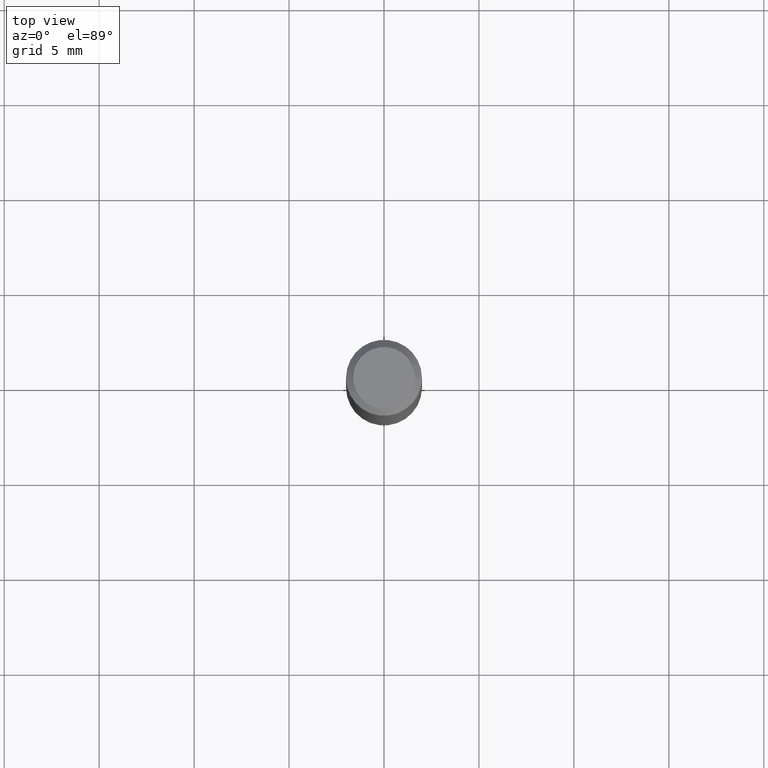
[diagram: clean part render]
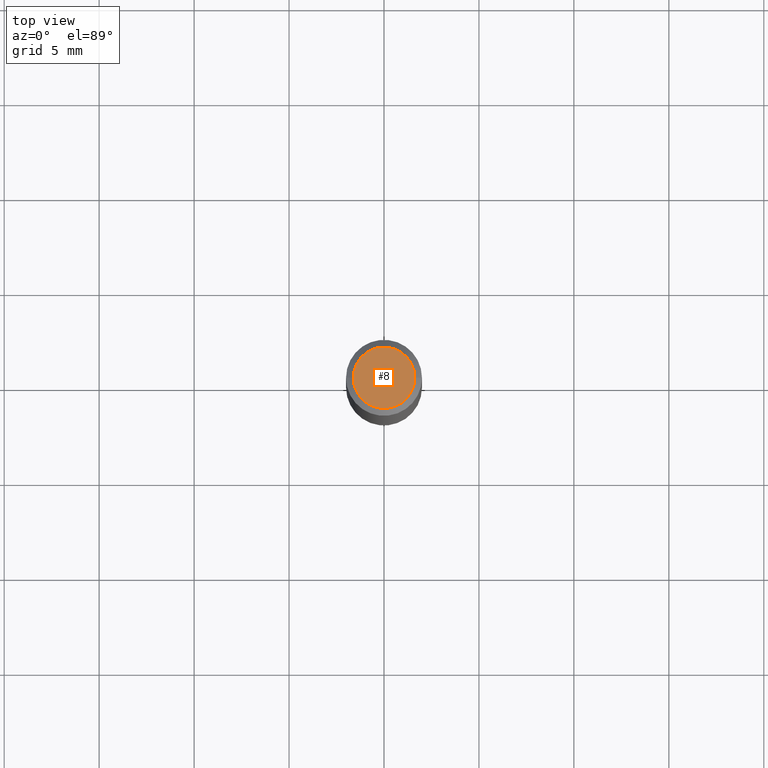
[diagram: same view with one face highlighted and labeled with its STEP entity id]
A machine part, top view. The second image highlights one B-rep face of the part: STEP entity #8.
In plain terms, the highlighted planar face has unit normal (0, -0, -1).
Its self-contained STEP definition (entity closure, byte-faithful):
#8 = ADVANCED_FACE ( 'NONE', ( #87 ), #22, .F. ) ;
#15 = EDGE_LOOP ( 'NONE', ( #78, #452 ) ) ;
#19 = VERTEX_POINT ( 'NONE', #122 ) ;
#22 = PLANE ( 'NONE',  #158 ) ;
#57 = AXIS2_PLACEMENT_3D ( 'NONE', #63, #162, #246 ) ;
#60 = CIRCLE ( 'NONE', #57, 0.06375000000000000111 ) ;
#63 = CARTESIAN_POINT ( 'NONE',  ( -4.090239139873613471E-45, 5.839777466044440725E-31, 1.672578742173478425E-16 ) ) ;
#78 = ORIENTED_EDGE ( 'NONE', *, *, #220, .T. ) ;
#87 = FACE_OUTER_BOUND ( 'NONE', #15, .T. ) ;
#122 = CARTESIAN_POINT ( 'NONE',  ( -0.06375000000000000111, 4.713499807438232199E-16, 1.672578742173446131E-16 ) ) ;
#129 = CARTESIAN_POINT ( 'NONE',  ( 4.451638707024993845E-16, 0.06375000000000000111, -1.389529982425766091E-16 ) ) ;
#135 = CARTESIAN_POINT ( 'NONE',  ( 0.06375000000000000111, -5.149965923825449307E-16, 1.672578742173511952E-16 ) ) ;
#158 = AXIS2_PLACEMENT_3D ( 'NONE', #129, #240, #329 ) ;
#162 = DIRECTION ( 'NONE',  ( -2.445468806185136597E-29, 3.491481338843145583E-15, 1.000000000000000000 ) ) ;
#178 = AXIS2_PLACEMENT_3D ( 'NONE', #310, #424, #250 ) ;
#214 = CIRCLE ( 'NONE', #178, 0.06375000000000000111 ) ;
#220 = EDGE_CURVE ( 'NONE', #19, #350, #60, .T. ) ;
#240 = DIRECTION ( 'NONE',  ( 2.438088387897960049E-29, -3.491481338843145188E-15, -1.000000000000000000 ) ) ;
#246 = DIRECTION ( 'NONE',  ( 1.000000000000000000, -6.982962677686265922E-15, 4.852736867747365646E-29 ) ) ;
#250 = DIRECTION ( 'NONE',  ( 1.000000000000000000, -6.982962677686265922E-15, 4.852736867747365646E-29 ) ) ;
#306 = EDGE_CURVE ( 'NONE', #350, #19, #214, .T. ) ;
#310 = CARTESIAN_POINT ( 'NONE',  ( -4.090239139873613471E-45, 5.839777466044440725E-31, 1.672578742173478425E-16 ) ) ;
#329 = DIRECTION ( 'NONE',  ( -1.000000000000000000, 6.982962677686265922E-15, -4.876176775795935793E-29 ) ) ;
#350 = VERTEX_POINT ( 'NONE', #135 ) ;
#424 = DIRECTION ( 'NONE',  ( -2.445468806185136597E-29, 3.491481338843145583E-15, 1.000000000000000000 ) ) ;
#452 = ORIENTED_EDGE ( 'NONE', *, *, #306, .T. ) ;